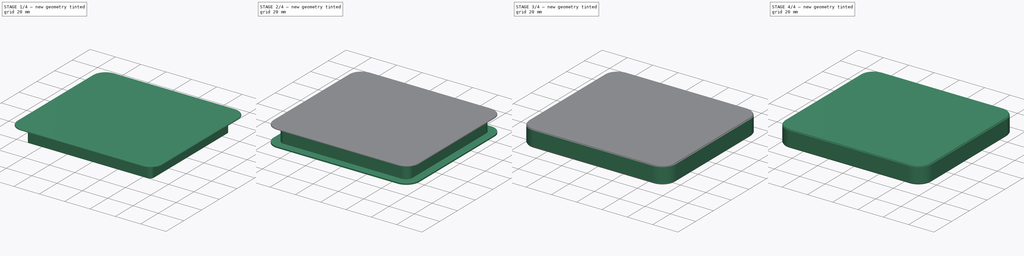
[diagram: build sequence overview — one tinted view per stage of 4, left to right]
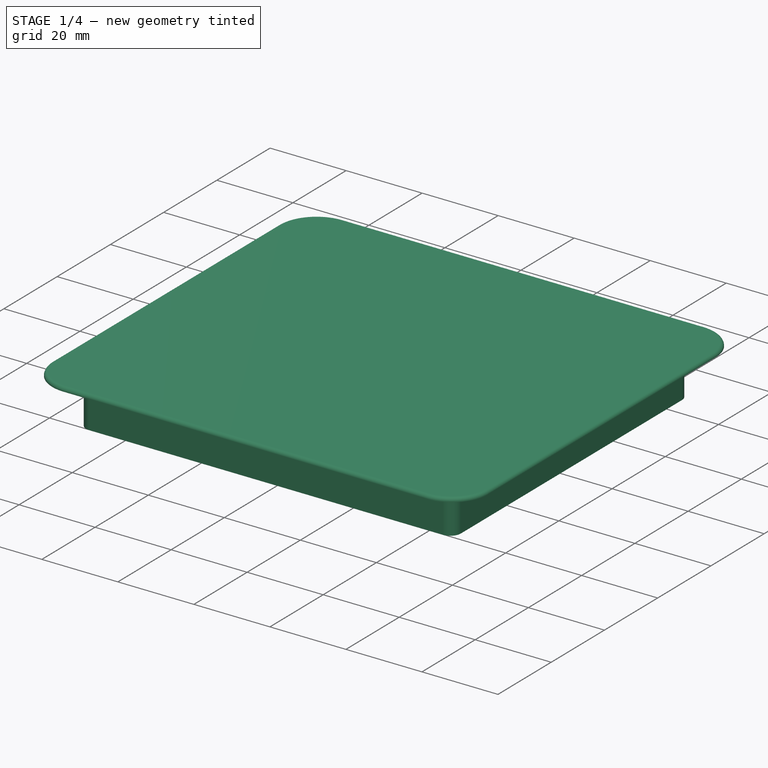
[diagram: stage 1 of 4 — iso view after this stage's code; geometry added in this stage tinted green]
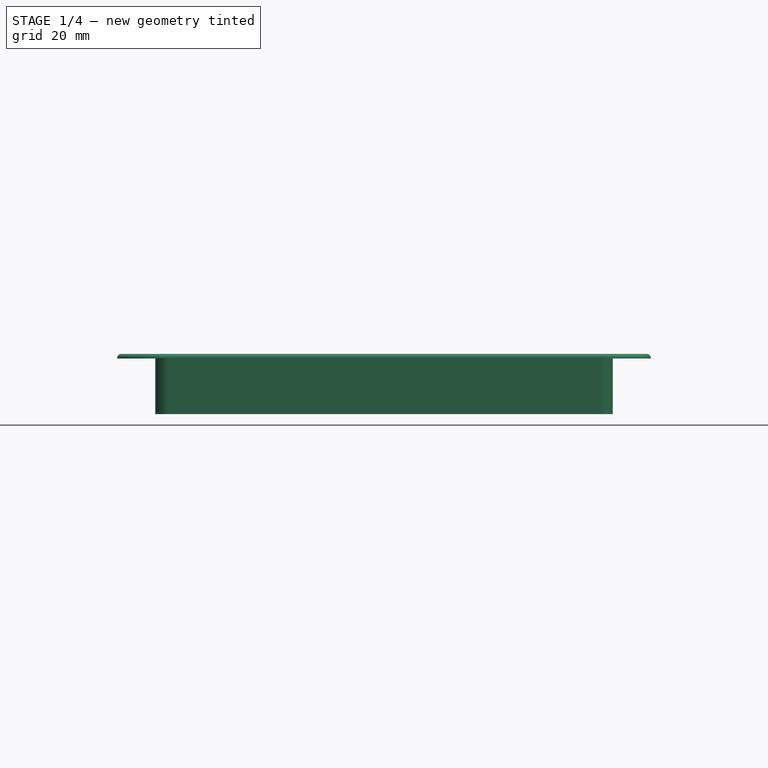
[diagram: stage 1 of 4 — front view after this stage's code; geometry added in this stage tinted green]
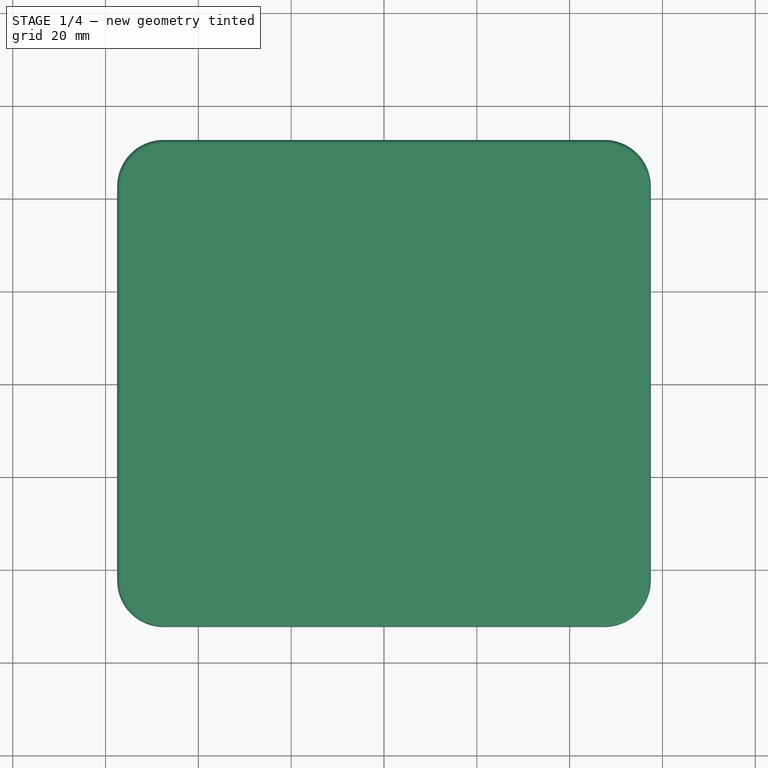
[diagram: stage 1 of 4 — top view after this stage's code; geometry added in this stage tinted green]
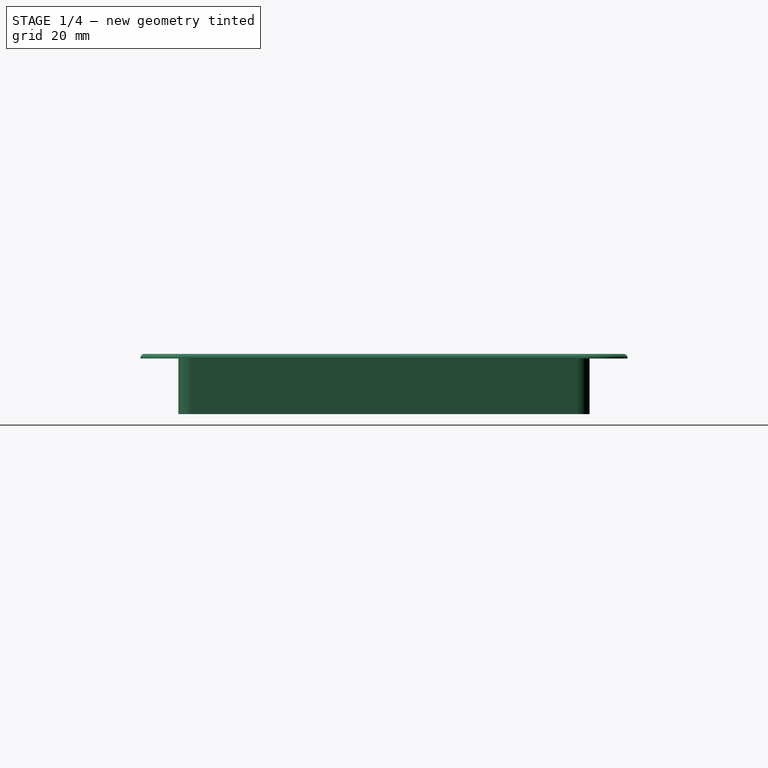
[diagram: stage 1 of 4 — right view after this stage's code; geometry added in this stage tinted green]
FCSTD DOCUMENT  (FreeCAD 1.0R39319 (Git))
Label: shower cover
License: All rights reserved
objects: Sketcher::SketchObject×10, PartDesign::Pad×8, PartDesign::Body×4, PartDesign::Fillet×3, PartDesign::SubtractivePipe×1, PartDesign::AdditivePipe×1
note: 63 computed .brp shape members not serialized (recipe doc carries the construction recipe); baked Part::Feature solids carry a one-line shape summary decoded from their .brp

FEATURE [PartDesign::Body] Body002  label="Half shell, outer"
  AllowCompound = false
  Group = -> [Sketch004,Pad004,Sketch005,Pad005,Fillet001,Sketch006,SubtractivePipe]
  Origin = -> Origin002
  Tip = -> SubtractivePipe
FEATURE [Sketcher::SketchObject] Sketch007
  ArcFitTolerance = 1e-06
  AttachmentSupport = -> [XY_Plane003]
  FullyConstrained = true
  MakeInternals = false
  MapMode = 5
  sketch-geometry (18):
    g0: LineSegment StartX=-46.5 StartY=-44.3 StartZ=0 EndX=46.5 EndY=-44.3 EndZ=0
    g1: LineSegment StartX=49.3 StartY=-41.5 StartZ=0 EndX=49.3 EndY=41.5 EndZ=0
    g2: LineSegment StartX=46.5 StartY=44.3 StartZ=0 EndX=-46.5 EndY=44.3 EndZ=0
    g3: LineSegment StartX=-49.3 StartY=41.5 StartZ=0 EndX=-49.3 EndY=-41.5 EndZ=0
    g4: ArcOfCircle CenterX=-46.5 CenterY=-41.5 CenterZ=0 NormalX=0 NormalY=0 NormalZ=1 AngleXU=0 Radius=2.8 StartAngle=3.14159 EndAngle=4.71239
    g5: ArcOfCircle CenterX=46.5 CenterY=-41.5 CenterZ=0 NormalX=0 NormalY=0 NormalZ=1 AngleXU=0 Radius=2.8 StartAngle=4.71239 EndAngle=6.28319
    g6: ArcOfCircle CenterX=46.5 CenterY=41.5 CenterZ=0 NormalX=0 NormalY=0 NormalZ=1 AngleXU=0 Radius=2.8 StartAngle=0 EndAngle=1.5708
    g7: ArcOfCircle CenterX=-46.5 CenterY=41.5 CenterZ=0 NormalX=0 NormalY=0 NormalZ=1 AngleXU=0 Radius=2.8 StartAngle=1.5708 EndAngle=3.14159
    g8: LineSegment StartX=-46.5 StartY=-42.3 StartZ=0 EndX=46.5 EndY=-42.3 EndZ=0
    g9: LineSegment StartX=47.3 StartY=-41.5 StartZ=0 EndX=47.3 EndY=41.5 EndZ=0
    g10: LineSegment StartX=46.5 StartY=42.3 StartZ=0 EndX=-46.5 EndY=42.3 EndZ=0
    g11: LineSegment StartX=-47.3 StartY=41.5 StartZ=0 EndX=-47.3 EndY=-41.5 EndZ=0
    g12: ArcOfCircle CenterX=-46.5 CenterY=-41.5 CenterZ=0 NormalX=0 NormalY=0 NormalZ=1 AngleXU=0 Radius=0.8 StartAngle=3.14159 EndAngle=4.71239
    g13: ArcOfCircle CenterX=46.5 CenterY=-41.5 CenterZ=0 NormalX=0 NormalY=0 NormalZ=1 AngleXU=0 Radius=0.8 StartAngle=4.71239 EndAngle=6.28319
    g14: ArcOfCircle CenterX=46.5 CenterY=41.5 CenterZ=0 NormalX=0 NormalY=0 NormalZ=1 AngleXU=0 Radius=0.8 StartAngle=0 EndAngle=1.5708
    g15: ArcOfCircle CenterX=-46.5 CenterY=41.5 CenterZ=0 NormalX=0 NormalY=0 NormalZ=1 AngleXU=0 Radius=0.8 StartAngle=1.5708 EndAngle=3.14159
    g16: GeomPoint [constr] X=49.3 Y=44.3 Z=0
    g17: GeomPoint [constr] X=0 Y=0 Z=0
  constraints (38):
    c: Tangent(g0,g4) = -1.5708
    c: Tangent(g0,g5) = -1.5708
    c: Tangent(g1,g5) = -1.5708
    c: Tangent(g1,g6) = -1.5708
    c: Tangent(g2,g6) = -1.5708
    c: Tangent(g2,g7) = -1.5708
    c: Tangent(g3,g7) = -1.5708
    c: Tangent(g3,g4) = -1.5708
    c: Horizontal(g0)
    c: Horizontal(g2)
    c: Vertical(g1)
    c: Vertical(g3)
    c: Equal(g4,g5)
    c: Equal(g5,g6)
    c: Equal(g6,g7)
    c: Tangent(g8,g12) = -1.5708
    c: Tangent(g8,g13) = -1.5708
    c: Tangent(g9,g13) = -1.5708
    c: Tangent(g9,g14) = -1.5708
    c: Tangent(g10,g14) = -1.5708
    c: Tangent(g10,g15) = -1.5708
    c: Tangent(g11,g15) = -1.5708
    c: Tangent(g11,g12) = -1.5708
    c: Coincident(g4,g12)
    c: Coincident(g5,g13)
    c: Coincident(g6,g14)
    c: Coincident(g7,g15)
    c: Horizontal(g8)
    c: Horizontal(g10)
    c: Vertical(g9)
    c: Symmetric(g2,g0,g17)
    c: PointOnObject(g16,g1)
    c: PointOnObject(g16,g2)
    c: Distance(g1,g3) = 98.6
    c: Distance(g0,g2) = 88.6
    c: Radius(g5) = 2.8
    c: Distance(g8,g0) = 2
    c: Coincident(g17,g-1)
FEATURE [PartDesign::Pad] Pad006
  Direction = (0,0,1)
  Length = 12
  Length2 = 10
  Midplane = true
  Profile = -> Sketch007
  ReferenceAxis = -> Sketch007 [N_Axis]
  Refine = true
  Suppressed = false
  Type = 0
FEATURE [Sketcher::SketchObject] Sketch008
  ArcFitTolerance = 1e-06
  AttachmentSupport = -> [Pad006]
  FullyConstrained = true
  MakeInternals = false
  MapMode = 5
  Placement = pos=(0,0,6) rot=(0,0,1;0rad)
  sketch-geometry (10):
    g0: LineSegment StartX=-47.5 StartY=-52.5 StartZ=0 EndX=47.5 EndY=-52.5 EndZ=0
    g1: LineSegment StartX=57.5 StartY=-42.5 StartZ=0 EndX=57.5 EndY=42.5 EndZ=0
    g2: LineSegment StartX=47.5 StartY=52.5 StartZ=0 EndX=-47.5 EndY=52.5 EndZ=0
    g3: LineSegment StartX=-57.5 StartY=42.5 StartZ=0 EndX=-57.5 EndY=-42.5 EndZ=0
    g4: ArcOfCircle CenterX=-47.5 CenterY=-42.5 CenterZ=0 NormalX=0 NormalY=0 NormalZ=1 AngleXU=0 Radius=10 StartAngle=3.14159 EndAngle=4.71239
    g5: ArcOfCircle CenterX=47.5 CenterY=-42.5 CenterZ=0 NormalX=0 NormalY=0 NormalZ=1 AngleXU=0 Radius=10 StartAngle=4.71239 EndAngle=6.28319
    g6: ArcOfCircle CenterX=47.5 CenterY=42.5 CenterZ=0 NormalX=0 NormalY=0 NormalZ=1 AngleXU=0 Radius=10 StartAngle=0 EndAngle=1.5708
    g7: ArcOfCircle CenterX=-47.5 CenterY=42.5 CenterZ=0 NormalX=0 NormalY=0 NormalZ=1 AngleXU=0 Radius=10 StartAngle=1.5708 EndAngle=3.14159
    g8: GeomPoint [constr] X=57.5 Y=52.5 Z=0
    g9: GeomPoint [constr] X=0 Y=0 Z=0
  constraints (22):
    c: Tangent(g0,g4) = -1.5708
    c: Tangent(g0,g5) = -1.5708
    c: Tangent(g1,g5) = -1.5708
    c: Tangent(g1,g6) = -1.5708
    c: Tangent(g2,g6) = -1.5708
    c: Tangent(g2,g7) = -1.5708
    c: Tangent(g3,g7) = -1.5708
    c: Tangent(g3,g4) = -1.5708
    c: Horizontal(g0)
    c: Horizontal(g2)
    c: Vertical(g1)
    c: Vertical(g3)
    c: Equal(g4,g5)
    c: Equal(g5,g6)
    c: Equal(g6,g7)
    c: Symmetric(g2,g0,g9)
    c: PointOnObject(g8,g1)
    c: PointOnObject(g8,g2)
    c: Distance(g1,g3) = 115
    c: Distance(g0,g2) = 105
    c: Radius(g5) = 10
    c: Coincident(g9,g-1)
FEATURE [PartDesign::Pad] Pad007
  BaseFeature = -> Pad006
  Direction = (0,0,1)
  Length = 1
  Length2 = 10
  Profile = -> Sketch008
  ReferenceAxis = -> Sketch008 [N_Axis]
  Refine = true
  Suppressed = false
  Type = 0
FEATURE [PartDesign::Fillet] Fillet002
  Base = -> Pad007 [Edge65]
  BaseFeature = -> Pad007
  Radius = 0.9
  Refine = true
  SupportTransform = false
  Suppressed = false
  UseAllEdges = false
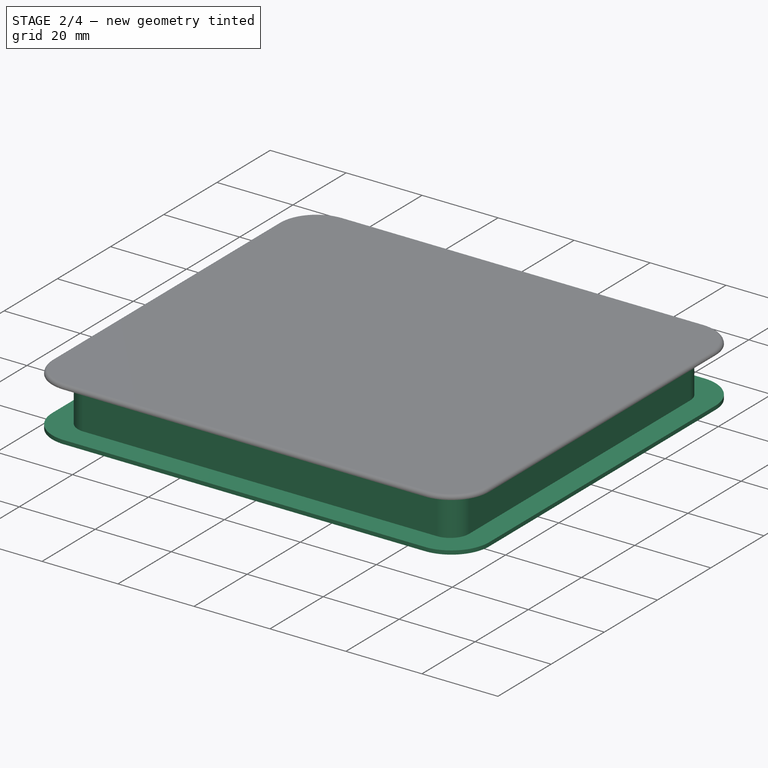
[diagram: stage 2 of 4 — iso view after this stage's code; geometry added in this stage tinted green]
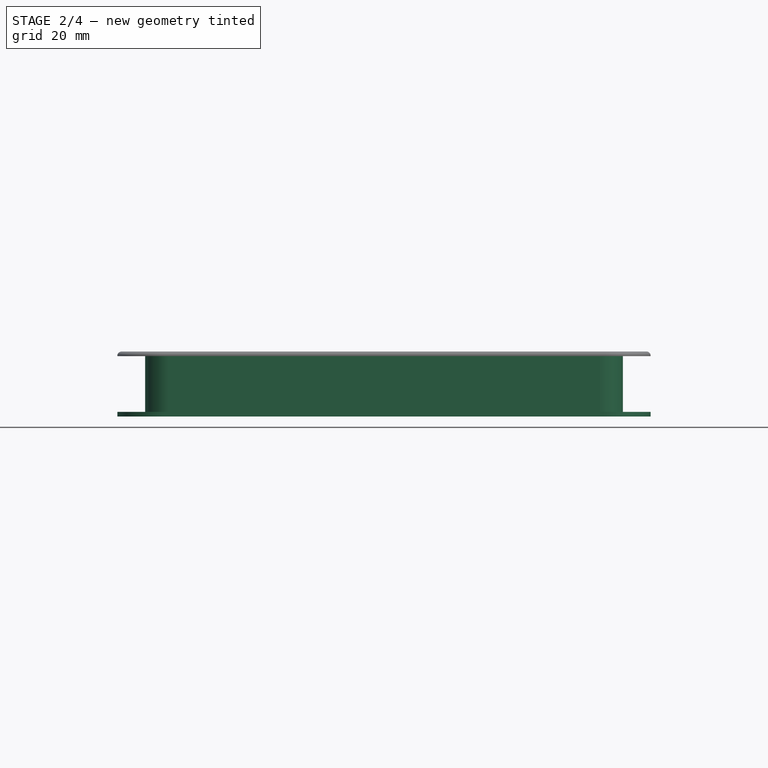
[diagram: stage 2 of 4 — front view after this stage's code; geometry added in this stage tinted green]
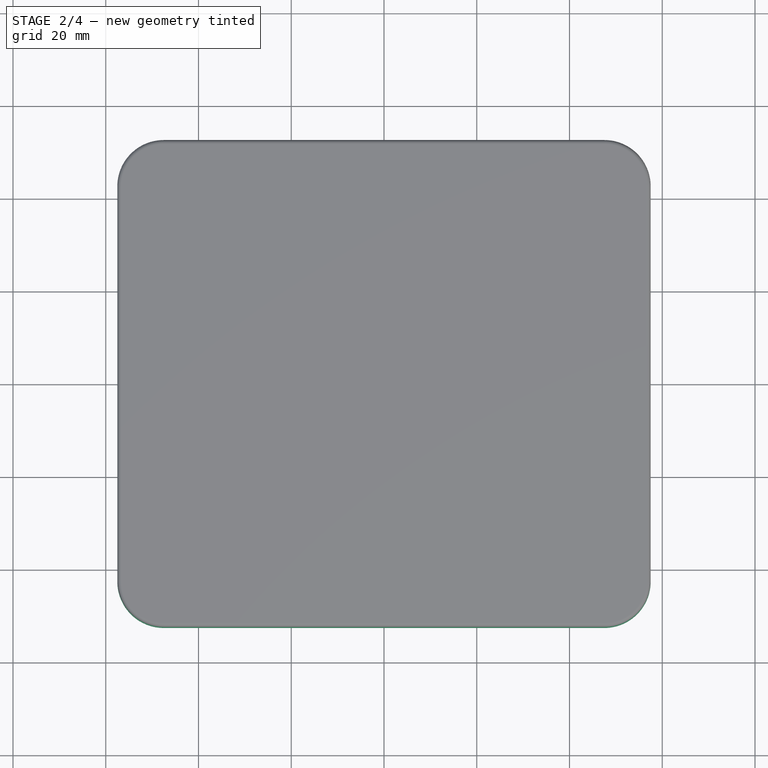
[diagram: stage 2 of 4 — top view after this stage's code; geometry added in this stage tinted green]
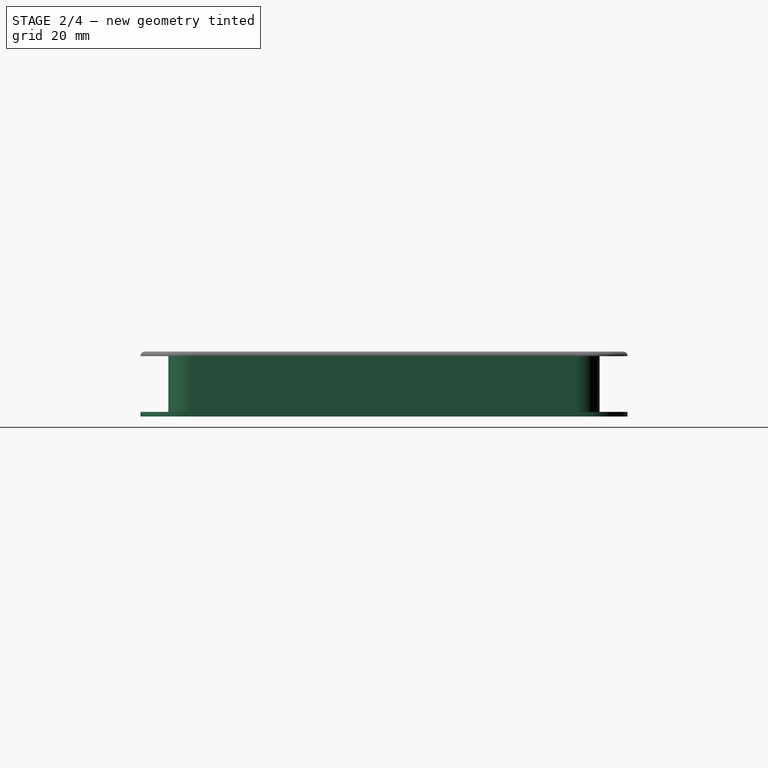
[diagram: stage 2 of 4 — right view after this stage's code; geometry added in this stage tinted green]
FEATURE [PartDesign::Body] Body001  label="support"
  AllowCompound = false
  Group = -> [Sketch003,Pad003]
  Origin = -> Origin001
  Tip = -> Pad003
FEATURE [Sketcher::SketchObject] Sketch004
  ArcFitTolerance = 1e-06
  AttachmentSupport = -> [XY_Plane002]
  FullyConstrained = true
  MakeInternals = false
  MapMode = 5
  sketch-geometry (18):
    g0: LineSegment StartX=-46.5 StartY=-46.5 StartZ=0 EndX=46.5 EndY=-46.5 EndZ=0
    g1: LineSegment StartX=51.5 StartY=-41.5 StartZ=0 EndX=51.5 EndY=41.5 EndZ=0
    g2: LineSegment StartX=46.5 StartY=46.5 StartZ=0 EndX=-46.5 EndY=46.5 EndZ=0
    g3: LineSegment StartX=-51.5 StartY=41.5 StartZ=0 EndX=-51.5 EndY=-41.5 EndZ=0
    g4: ArcOfCircle CenterX=-46.5 CenterY=-41.5 CenterZ=0 NormalX=0 NormalY=0 NormalZ=1 AngleXU=0 Radius=5 StartAngle=3.14159 EndAngle=4.71239
    g5: ArcOfCircle CenterX=46.5 CenterY=-41.5 CenterZ=0 NormalX=0 NormalY=0 NormalZ=1 AngleXU=0 Radius=5 StartAngle=4.71239 EndAngle=6.28319
    g6: ArcOfCircle CenterX=46.5 CenterY=41.5 CenterZ=0 NormalX=0 NormalY=0 NormalZ=1 AngleXU=0 Radius=5 StartAngle=0 EndAngle=1.5708
    g7: ArcOfCircle CenterX=-46.5 CenterY=41.5 CenterZ=0 NormalX=0 NormalY=0 NormalZ=1 AngleXU=0 Radius=5 StartAngle=1.5708 EndAngle=3.14159
    g8: LineSegment StartX=-46.5 StartY=-44.5 StartZ=0 EndX=46.5 EndY=-44.5 EndZ=0
    g9: LineSegment StartX=49.5 StartY=-41.5 StartZ=0 EndX=49.5 EndY=41.5 EndZ=0
    g10: LineSegment StartX=46.5 StartY=44.5 StartZ=0 EndX=-46.5 EndY=44.5 EndZ=0
    g11: LineSegment StartX=-49.5 StartY=41.5 StartZ=0 EndX=-49.5 EndY=-41.5 EndZ=0
    g12: ArcOfCircle CenterX=-46.5 CenterY=-41.5 CenterZ=0 NormalX=0 NormalY=0 NormalZ=1 AngleXU=0 Radius=3 StartAngle=3.14159 EndAngle=4.71239
    g13: ArcOfCircle CenterX=46.5 CenterY=-41.5 CenterZ=0 NormalX=0 NormalY=0 NormalZ=1 AngleXU=0 Radius=3 StartAngle=4.71239 EndAngle=6.28319
    g14: ArcOfCircle CenterX=46.5 CenterY=41.5 CenterZ=0 NormalX=0 NormalY=0 NormalZ=1 AngleXU=0 Radius=3 StartAngle=0 EndAngle=1.5708
    g15: ArcOfCircle CenterX=-46.5 CenterY=41.5 CenterZ=0 NormalX=0 NormalY=0 NormalZ=1 AngleXU=0 Radius=3 StartAngle=1.5708 EndAngle=3.14159
    g16: GeomPoint [constr] X=51.5 Y=46.5 Z=0
    g17: GeomPoint [constr] X=0 Y=0 Z=0
  constraints (38):
    c: Tangent(g0,g4) = -1.5708
    c: Tangent(g0,g5) = -1.5708
    c: Tangent(g1,g5) = -1.5708
    c: Tangent(g1,g6) = -1.5708
    c: Tangent(g2,g6) = -1.5708
    c: Tangent(g2,g7) = -1.5708
    c: Tangent(g3,g7) = -1.5708
    c: Tangent(g3,g4) = -1.5708
    c: Horizontal(g0)
    c: Horizontal(g2)
    c: Vertical(g1)
    c: Vertical(g3)
    c: Equal(g4,g5)
    c: Equal(g5,g6)
    c: Equal(g6,g7)
    c: Tangent(g8,g12) = -1.5708
    c: Tangent(g8,g13) = -1.5708
    c: Tangent(g9,g13) = -1.5708
    c: Tangent(g9,g14) = -1.5708
    c: Tangent(g10,g14) = -1.5708
    c: Tangent(g10,g15) = -1.5708
    c: Tangent(g11,g15) = -1.5708
    c: Tangent(g11,g12) = -1.5708
    c: Coincident(g4,g12)
    c: Coincident(g5,g13)
    c: Coincident(g6,g14)
    c: Coincident(g7,g15)
    c: Horizontal(g8)
    c: Horizontal(g10)
    c: Vertical(g9)
    c: Symmetric(g2,g0,g17)
    c: PointOnObject(g16,g1)
    c: PointOnObject(g16,g2)
    c: Distance(g1,g3) = 103
    c: Distance(g0,g2) = 93
    c: Radius(g5) = 5
    c: Distance(g8,g0) = 2
    c: Coincident(g17,g-1)
FEATURE [PartDesign::Pad] Pad004
  Direction = (0,0,1)
  Length = 12
  Length2 = 10
  Midplane = true
  Profile = -> Sketch004
  ReferenceAxis = -> Sketch004 [N_Axis]
  Refine = true
  Suppressed = false
  Type = 0
FEATURE [Sketcher::SketchObject] Sketch005
  ArcFitTolerance = 1e-06
  AttachmentSupport = -> [Pad004]
  FullyConstrained = true
  MakeInternals = false
  MapMode = 5
  Placement = pos=(0,0,-6) rot=(1,0,0;3.14159rad)
  sketch-geometry (10):
    g0: LineSegment StartX=-47.5 StartY=-52.5 StartZ=0 EndX=47.5 EndY=-52.5 EndZ=0
    g1: LineSegment StartX=57.5 StartY=-42.5 StartZ=0 EndX=57.5 EndY=42.5 EndZ=0
    g2: LineSegment StartX=47.5 StartY=52.5 StartZ=0 EndX=-47.5 EndY=52.5 EndZ=0
    g3: LineSegment StartX=-57.5 StartY=42.5 StartZ=0 EndX=-57.5 EndY=-42.5 EndZ=0
    g4: ArcOfCircle CenterX=-47.5 CenterY=-42.5 CenterZ=0 NormalX=0 NormalY=0 NormalZ=1 AngleXU=0 Radius=10 StartAngle=3.14159 EndAngle=4.71239
    g5: ArcOfCircle CenterX=47.5 CenterY=-42.5 CenterZ=0 NormalX=0 NormalY=0 NormalZ=1 AngleXU=0 Radius=10 StartAngle=4.71239 EndAngle=6.28319
    g6: ArcOfCircle CenterX=47.5 CenterY=42.5 CenterZ=0 NormalX=0 NormalY=0 NormalZ=1 AngleXU=0 Radius=10 StartAngle=3.4e-15 EndAngle=1.5708
    g7: ArcOfCircle CenterX=-47.5 CenterY=42.5 CenterZ=0 NormalX=0 NormalY=0 NormalZ=1 AngleXU=0 Radius=10 StartAngle=1.5708 EndAngle=3.14159
    g8: GeomPoint [constr] X=57.5 Y=52.5 Z=0
    g9: GeomPoint [constr] X=0 Y=0 Z=0
  constraints (22):
    c: Tangent(g0,g4) = -1.5708
    c: Tangent(g0,g5) = -1.5708
    c: Tangent(g1,g5) = -1.5708
    c: Tangent(g1,g6) = -1.5708
    c: Tangent(g2,g6) = -1.5708
    c: Tangent(g2,g7) = -1.5708
    c: Tangent(g3,g7) = -1.5708
    c: Tangent(g3,g4) = -1.5708
    c: Horizontal(g0)
    c: Horizontal(g2)
    c: Vertical(g1)
    c: Vertical(g3)
    c: Equal(g4,g5)
    c: Equal(g5,g6)
    c: Equal(g6,g7)
    c: Symmetric(g2,g0,g9)
    c: PointOnObject(g8,g1)
    c: PointOnObject(g8,g2)
    c: Distance(g1,g3) = 115
    c: Distance(g0,g2) = 105
    c: Radius(g5) = 10
    c: Coincident(g9,g-1)
FEATURE [PartDesign::Pad] Pad005
  BaseFeature = -> Pad004
  Direction = (0,0,-1)
  Length = 1
  Length2 = 10
  Profile = -> Sketch005
  ReferenceAxis = -> Sketch005 [N_Axis]
  Refine = true
  Suppressed = false
  Type = 0
FEATURE [Sketcher::SketchObject] Sketch009
  ArcFitTolerance = 1e-06
  AttachmentSupport = -> [XZ_Plane003]
  ExternalGeometry = -> [Fillet002]
  FullyConstrained = true
  MakeInternals = false
  MapMode = 5
  Placement = pos=(0,0,0) rot=(1,0,0;1.5708rad)
  sketch-geometry (1):
    g0: Circle CenterX=-49.3 CenterY=0 CenterZ=0 NormalX=0 NormalY=0 NormalZ=1 AngleXU=0 Radius=0.2
  constraints (3):
    c: Diameter(g0) = 0.4
    c: PointOnObject(g0,g-1)
    c: Vertical(g0,g-3)
FEATURE [PartDesign::AdditivePipe] AdditivePipe
  AuxilleryCurvelinear = true
  AuxillerySpineTangent = false
  BaseFeature = -> Fillet002
  Binormal = (0,0,0)
  Mode = 0
  Profile = -> Sketch009
  Refine = true
  Spine = -> Fillet002 [Edge59,Edge60,Edge47,Edge49,Edge51,Edge53,Edge55,Edge57]
  SpineTangent = false
  Suppressed = false
  Transformation = 0
  Transition = 0
FEATURE [PartDesign::Body] Body003  label="half shell, inner"
  AllowCompound = false
  Group = -> [Sketch007,Pad006,Sketch008,Pad007,Fillet002,Sketch009,AdditivePipe]
  Origin = -> Origin003
  Tip = -> AdditivePipe
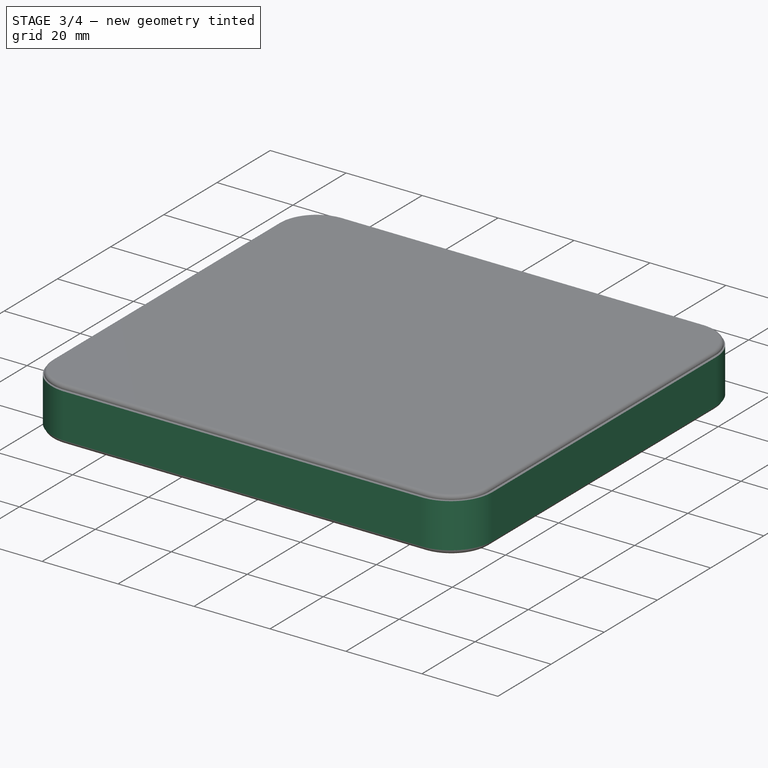
[diagram: stage 3 of 4 — iso view after this stage's code; geometry added in this stage tinted green]
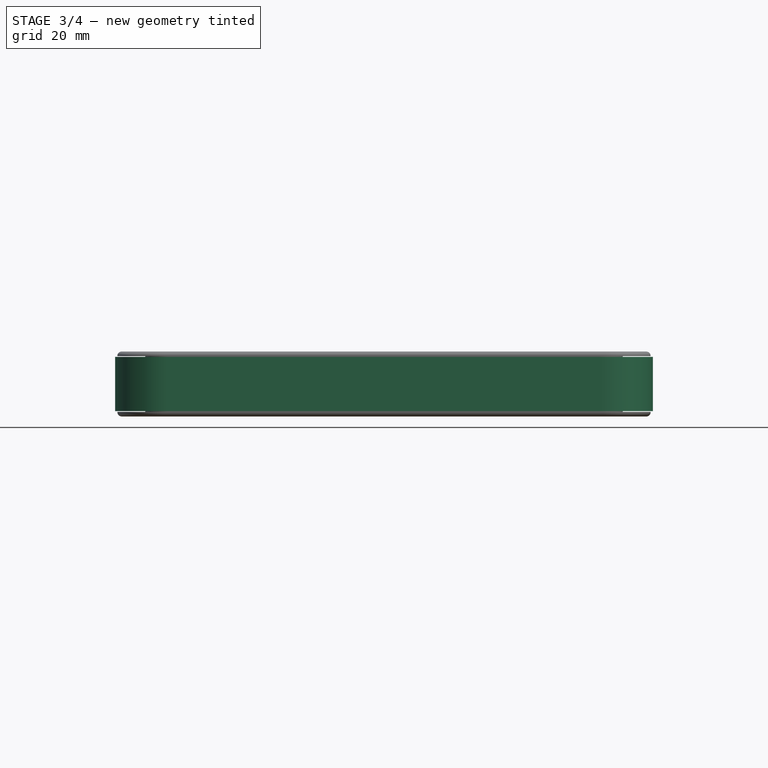
[diagram: stage 3 of 4 — front view after this stage's code; geometry added in this stage tinted green]
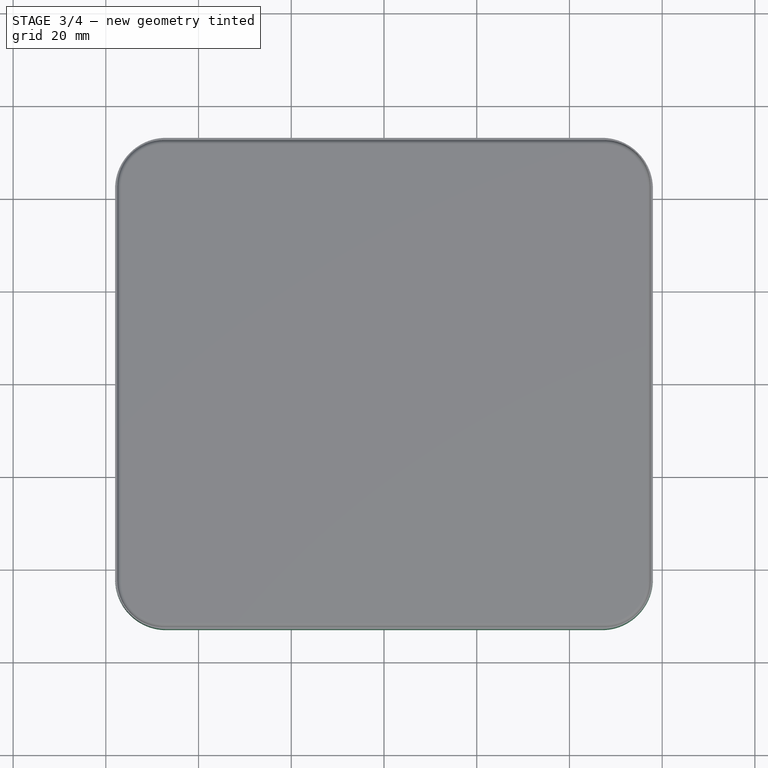
[diagram: stage 3 of 4 — top view after this stage's code; geometry added in this stage tinted green]
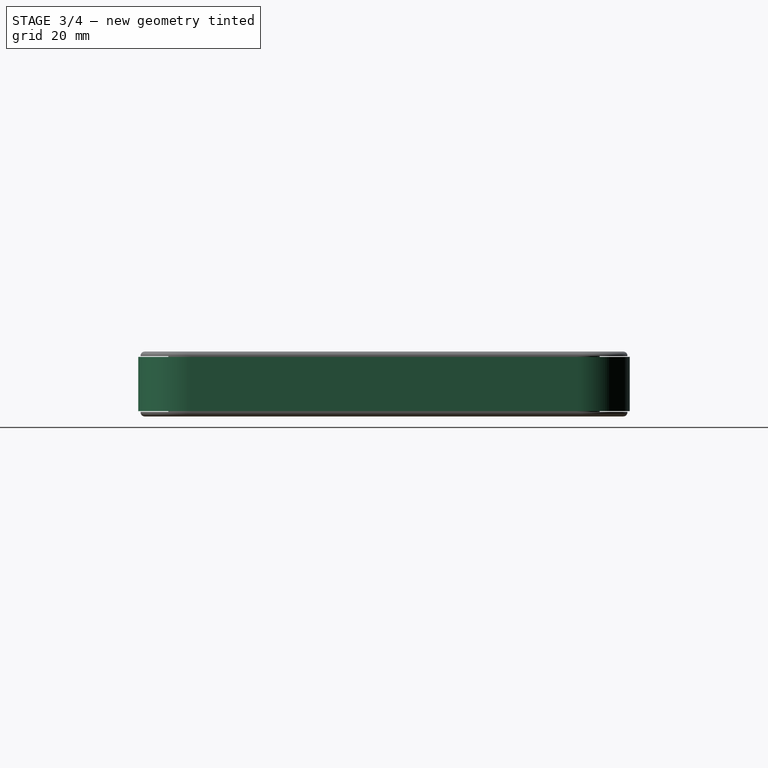
[diagram: stage 3 of 4 — right view after this stage's code; geometry added in this stage tinted green]
FEATURE [Sketcher::SketchObject] Sketch
  ArcFitTolerance = 1e-06
  AttachmentSupport = -> [XY_Plane]
  FullyConstrained = true
  MakeInternals = false
  MapMode = 5
  sketch-geometry (10):
    g0: LineSegment StartX=-46.5 StartY=-46.5 StartZ=0 EndX=46.5 EndY=-46.5 EndZ=0
    g1: LineSegment StartX=51.5 StartY=-41.5 StartZ=0 EndX=51.5 EndY=41.5 EndZ=0
    g2: LineSegment StartX=46.5 StartY=46.5 StartZ=0 EndX=-46.5 EndY=46.5 EndZ=0
    g3: LineSegment StartX=-51.5 StartY=41.5 StartZ=0 EndX=-51.5 EndY=-41.5 EndZ=0
    g4: ArcOfCircle CenterX=-46.5 CenterY=-41.5 CenterZ=0 NormalX=0 NormalY=0 NormalZ=1 AngleXU=0 Radius=5 StartAngle=3.14159 EndAngle=4.71239
    g5: ArcOfCircle CenterX=46.5 CenterY=-41.5 CenterZ=0 NormalX=0 NormalY=0 NormalZ=1 AngleXU=0 Radius=5 StartAngle=4.71239 EndAngle=6.28319
    g6: ArcOfCircle CenterX=46.5 CenterY=41.5 CenterZ=0 NormalX=0 NormalY=0 NormalZ=1 AngleXU=0 Radius=5 StartAngle=0 EndAngle=1.5708
    g7: ArcOfCircle CenterX=-46.5 CenterY=41.5 CenterZ=0 NormalX=0 NormalY=0 NormalZ=1 AngleXU=0 Radius=5 StartAngle=1.5708 EndAngle=3.14159
    g8: GeomPoint [constr] X=51.5 Y=46.5 Z=0
    g9: GeomPoint [constr] X=0 Y=0 Z=0
  constraints (22):
    c: Tangent(g0,g4) = -1.5708
    c: Tangent(g0,g5) = -1.5708
    c: Tangent(g1,g5) = -1.5708
    c: Tangent(g1,g6) = -1.5708
    c: Tangent(g2,g6) = -1.5708
    c: Tangent(g2,g7) = -1.5708
    c: Tangent(g3,g7) = -1.5708
    c: Tangent(g3,g4) = -1.5708
    c: Horizontal(g0)
    c: Horizontal(g2)
    c: Vertical(g1)
    c: Vertical(g3)
    c: Equal(g4,g5)
    c: Equal(g5,g6)
    c: Equal(g6,g7)
    c: Symmetric(g2,g0,g9)
    c: PointOnObject(g8,g1)
    c: PointOnObject(g8,g2)
    c: Distance(g1,g3) = 103
    c: Distance(g0,g2) = 93
    c: Radius(g5) = 5
    c: Coincident(g9,g-1)
FEATURE [PartDesign::Pad] Pad
  Direction = (0,0,1)
  Length = 12
  Length2 = 10
  Midplane = true
  Profile = -> Sketch
  ReferenceAxis = -> Sketch [N_Axis]
  Refine = true
  Suppressed = false
  Type = 0
FEATURE [PartDesign::Body] Body  label="Cover"
  AllowCompound = false
  Group = -> [Sketch,Pad,Sketch001,Pad001,Sketch002,Pad002,Fillet]
  Origin = -> Origin
  Tip = -> Fillet
FEATURE [Sketcher::SketchObject] Sketch003
  ArcFitTolerance = 1e-06
  AttachmentSupport = -> [XY_Plane001]
  FullyConstrained = true
  MakeInternals = false
  MapMode = 5
  sketch-geometry (18):
    g0: LineSegment StartX=-47 StartY=-47 StartZ=0 EndX=47 EndY=-47 EndZ=0
    g1: LineSegment StartX=52 StartY=-42 StartZ=0 EndX=52 EndY=42 EndZ=0
    g2: LineSegment StartX=47 StartY=47 StartZ=0 EndX=-47 EndY=47 EndZ=0
    g3: LineSegment StartX=-52 StartY=42 StartZ=0 EndX=-52 EndY=-42 EndZ=0
    g4: ArcOfCircle CenterX=-47 CenterY=-42 CenterZ=0 NormalX=0 NormalY=0 NormalZ=1 AngleXU=0 Radius=5 StartAngle=3.14159 EndAngle=4.71239
    g5: ArcOfCircle CenterX=47 CenterY=-42 CenterZ=0 NormalX=0 NormalY=0 NormalZ=1 AngleXU=0 Radius=5 StartAngle=4.71239 EndAngle=6.28319
    g6: ArcOfCircle CenterX=47 CenterY=42 CenterZ=0 NormalX=0 NormalY=0 NormalZ=1 AngleXU=0 Radius=5 StartAngle=3e-16 EndAngle=1.5708
    g7: ArcOfCircle CenterX=-47 CenterY=42 CenterZ=0 NormalX=0 NormalY=0 NormalZ=1 AngleXU=0 Radius=5 StartAngle=1.5708 EndAngle=3.14159
    g8: LineSegment StartX=-47 StartY=-53 StartZ=0 EndX=47 EndY=-53 EndZ=0
    g9: LineSegment StartX=58 StartY=-42 StartZ=0 EndX=58 EndY=42 EndZ=0
    g10: LineSegment StartX=47 StartY=53 StartZ=0 EndX=-47 EndY=53 EndZ=0
    g11: LineSegment StartX=-58 StartY=42 StartZ=0 EndX=-58 EndY=-42 EndZ=0
    g12: ArcOfCircle CenterX=-47 CenterY=-42 CenterZ=0 NormalX=0 NormalY=0 NormalZ=1 AngleXU=0 Radius=11 StartAngle=3.14159 EndAngle=4.71239
    g13: ArcOfCircle CenterX=47 CenterY=-42 CenterZ=0 NormalX=0 NormalY=0 NormalZ=1 AngleXU=0 Radius=11 StartAngle=4.71239 EndAngle=6.28319
    g14: ArcOfCircle CenterX=47 CenterY=42 CenterZ=0 NormalX=0 NormalY=0 NormalZ=1 AngleXU=0 Radius=11 StartAngle=2e-16 EndAngle=1.5708
    g15: ArcOfCircle CenterX=-47 CenterY=42 CenterZ=0 NormalX=0 NormalY=0 NormalZ=1 AngleXU=0 Radius=11 StartAngle=1.5708 EndAngle=3.14159
    g16: GeomPoint [constr] X=52 Y=47 Z=0
    g17: GeomPoint [constr] X=0 Y=0 Z=0
  constraints (38):
    c: Tangent(g0,g4) = -1.5708
    c: Tangent(g0,g5) = -1.5708
    c: Tangent(g1,g5) = -1.5708
    c: Tangent(g1,g6) = -1.5708
    c: Tangent(g2,g6) = -1.5708
    c: Tangent(g2,g7) = -1.5708
    c: Tangent(g3,g7) = -1.5708
    c: Tangent(g3,g4) = -1.5708
    c: Horizontal(g0)
    c: Horizontal(g2)
    c: Vertical(g1)
    c: Vertical(g3)
    c: Equal(g4,g5)
    c: Equal(g5,g6)
    c: Equal(g6,g7)
    c: Tangent(g8,g12) = -1.5708
    c: Tangent(g8,g13) = -1.5708
    c: Tangent(g9,g13) = -1.5708
    c: Tangent(g9,g14) = -1.5708
    c: Tangent(g10,g14) = -1.5708
    c: Tangent(g10,g15) = -1.5708
    c: Tangent(g11,g15) = -1.5708
    c: Tangent(g11,g12) = -1.5708
    c: Coincident(g4,g12)
    c: Coincident(g5,g13)
    c: Coincident(g6,g14)
    c: Coincident(g7,g15)
    c: Horizontal(g8)
    c: Horizontal(g10)
    c: Vertical(g9)
    c: Symmetric(g2,g0,g17)
    c: PointOnObject(g16,g1)
    c: PointOnObject(g16,g2)
    c: Distance(g1,g3) = 104
    c: Distance(g0,g2) = 94
    c: Radius(g5) = 5
    c: Distance(g8,g0) = 6
    c: Coincident(g17,g-1)
FEATURE [PartDesign::Pad] Pad003
  Direction = (0,0,1)
  Length = 11.7
  Length2 = 10
  Midplane = true
  Profile = -> Sketch003
  ReferenceAxis = -> Sketch003 [N_Axis]
  Refine = true
  Suppressed = false
  Type = 0
FEATURE [PartDesign::Fillet] Fillet001
  Base = -> Pad005 [Edge49]
  BaseFeature = -> Pad005
  Radius = 0.9
  Refine = true
  SupportTransform = false
  Suppressed = false
  UseAllEdges = false
FEATURE [Sketcher::SketchObject] Sketch006
  ArcFitTolerance = 1e-06
  AttachmentSupport = -> [YZ_Plane002]
  ExternalGeometry = -> [Fillet001]
  FullyConstrained = true
  MakeInternals = false
  MapMode = 5
  Placement = pos=(0,0,0) rot=(0.57735,0.57735,0.57735;2.0944rad)
  sketch-geometry (1):
    g0: Circle CenterX=-44.5 CenterY=0 CenterZ=0 NormalX=0 NormalY=0 NormalZ=1 AngleXU=0 Radius=0.3
  constraints (3):
    c: Diameter(g0) = 0.6
    c: PointOnObject(g0,g-1)
    c: Vertical(g-3,g0)
FEATURE [PartDesign::SubtractivePipe] SubtractivePipe
  AuxilleryCurvelinear = true
  AuxillerySpineTangent = false
  BaseFeature = -> Fillet001
  Binormal = (0,0,0)
  Mode = 0
  Profile = -> Sketch006
  Refine = true
  Spine = -> Fillet001 [Edge65,Edge72,Edge71,Edge70,Edge69,Edge68,Edge67]
  SpineTangent = false
  Suppressed = false
  Transformation = 0
  Transition = 0
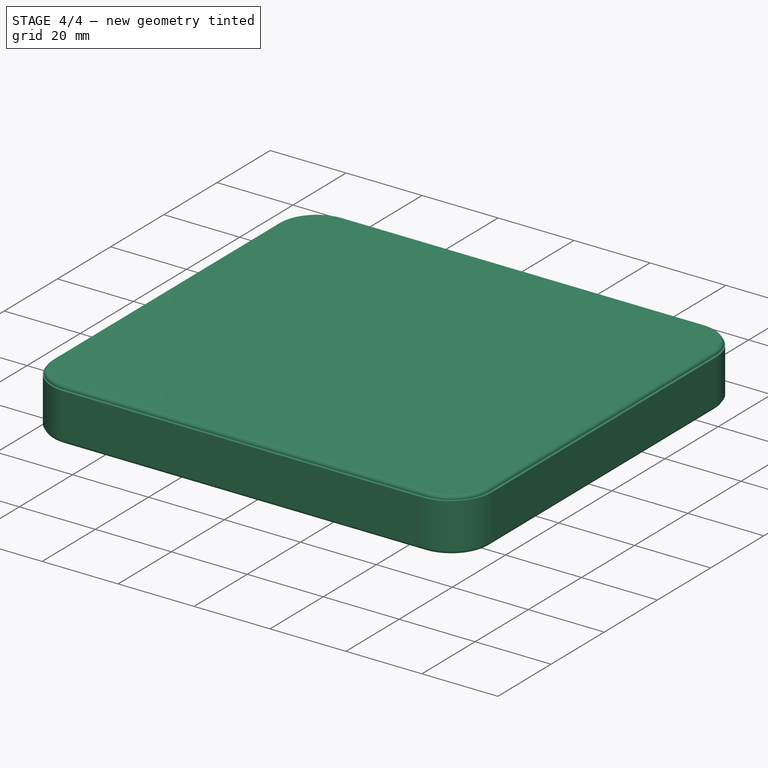
[diagram: stage 4 of 4 — iso view after this stage's code; geometry added in this stage tinted green]
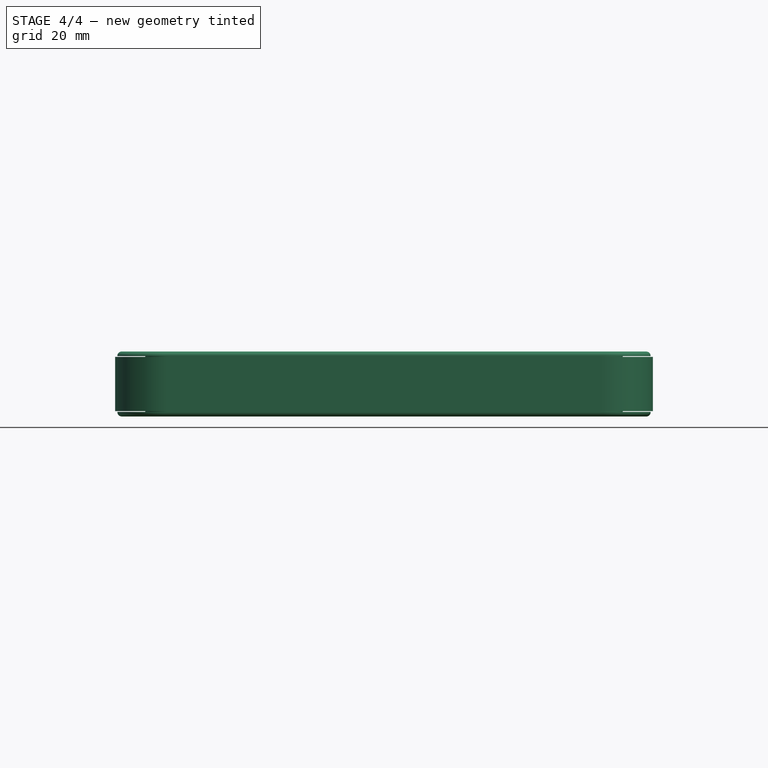
[diagram: stage 4 of 4 — front view after this stage's code; geometry added in this stage tinted green]
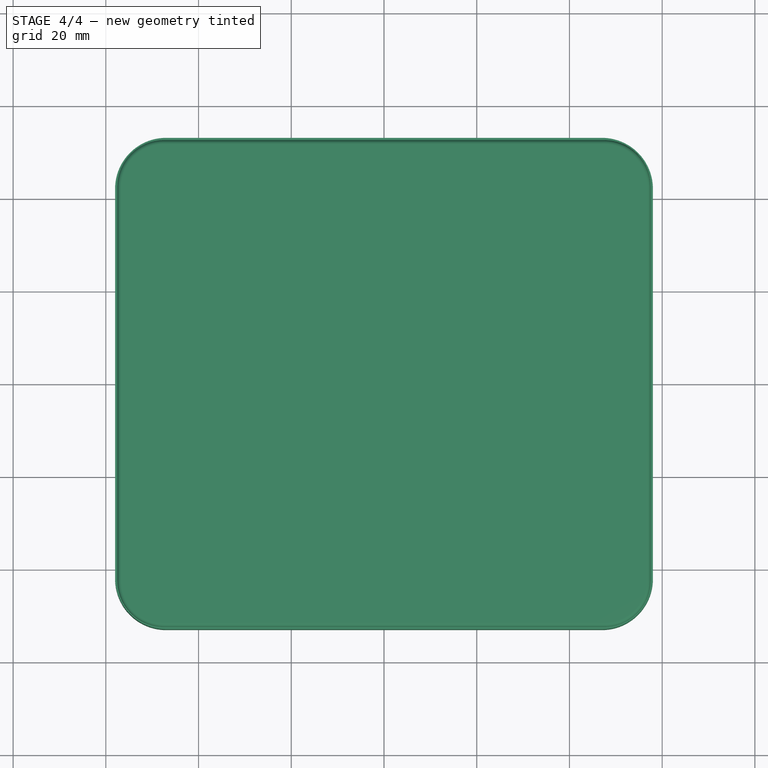
[diagram: stage 4 of 4 — top view after this stage's code; geometry added in this stage tinted green]
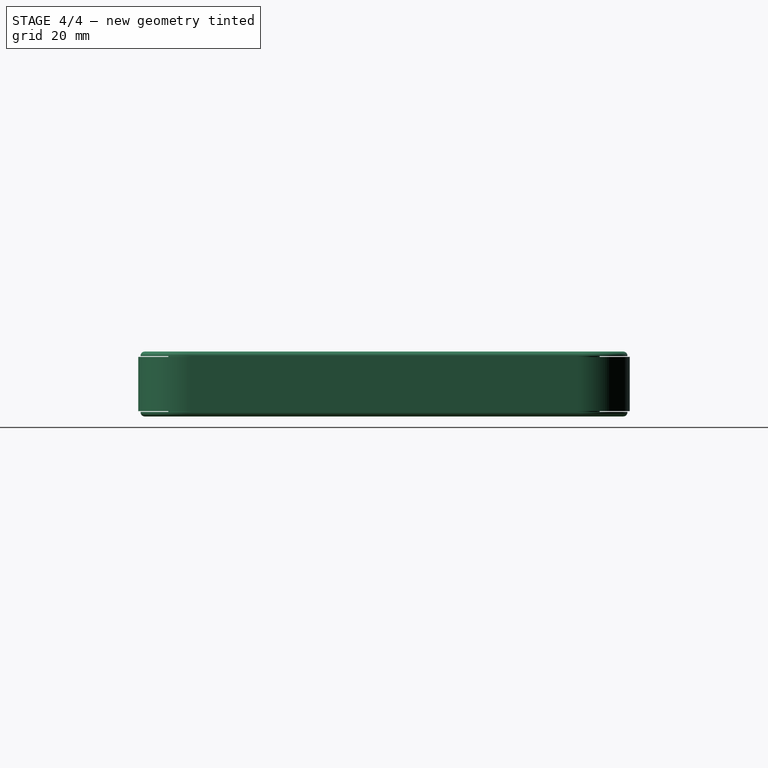
[diagram: stage 4 of 4 — right view after this stage's code; geometry added in this stage tinted green]
FEATURE [Sketcher::SketchObject] Sketch001
  ArcFitTolerance = 1e-06
  AttachmentSupport = -> [Pad]
  FullyConstrained = true
  MakeInternals = false
  MapMode = 5
  Placement = pos=(0,0,6) rot=(0,0,1;0rad)
  sketch-geometry (10):
    g0: LineSegment StartX=-47.5 StartY=-52.5 StartZ=0 EndX=47.5 EndY=-52.5 EndZ=0
    g1: LineSegment StartX=57.5 StartY=-42.5 StartZ=0 EndX=57.5 EndY=42.5 EndZ=0
    g2: LineSegment StartX=47.5 StartY=52.5 StartZ=0 EndX=-47.5 EndY=52.5 EndZ=0
    g3: LineSegment StartX=-57.5 StartY=42.5 StartZ=0 EndX=-57.5 EndY=-42.5 EndZ=0
    g4: ArcOfCircle CenterX=-47.5 CenterY=-42.5 CenterZ=0 NormalX=0 NormalY=0 NormalZ=1 AngleXU=0 Radius=10 StartAngle=3.14159 EndAngle=4.71239
    g5: ArcOfCircle CenterX=47.5 CenterY=-42.5 CenterZ=0 NormalX=0 NormalY=0 NormalZ=1 AngleXU=0 Radius=10 StartAngle=4.71239 EndAngle=6.28319
    g6: ArcOfCircle CenterX=47.5 CenterY=42.5 CenterZ=0 NormalX=0 NormalY=0 NormalZ=1 AngleXU=0 Radius=10 StartAngle=2.548e-13 EndAngle=1.5708
    g7: ArcOfCircle CenterX=-47.5 CenterY=42.5 CenterZ=0 NormalX=0 NormalY=0 NormalZ=1 AngleXU=0 Radius=10 StartAngle=1.5708 EndAngle=3.14159
    g8: GeomPoint [constr] X=57.5 Y=52.5 Z=0
    g9: GeomPoint [constr] X=0 Y=0 Z=0
  constraints (22):
    c: Tangent(g0,g4) = -1.5708
    c: Tangent(g0,g5) = -1.5708
    c: Tangent(g1,g5) = -1.5708
    c: Tangent(g1,g6) = -1.5708
    c: Tangent(g2,g6) = -1.5708
    c: Tangent(g2,g7) = -1.5708
    c: Tangent(g3,g7) = -1.5708
    c: Tangent(g3,g4) = -1.5708
    c: Horizontal(g0)
    c: Horizontal(g2)
    c: Vertical(g1)
    c: Vertical(g3)
    c: Equal(g4,g5)
    c: Equal(g5,g6)
    c: Equal(g6,g7)
    c: Symmetric(g2,g0,g9)
    c: PointOnObject(g8,g1)
    c: PointOnObject(g8,g2)
    c: Distance(g1,g3) = 115
    c: Distance(g0,g2) = 105
    c: Radius(g5) = 10
    c: Coincident(g9,g-1)
FEATURE [PartDesign::Pad] Pad001
  BaseFeature = -> Pad
  Direction = (0,0,1)
  Length = 1
  Length2 = 10
  Profile = -> Sketch001
  ReferenceAxis = -> Sketch001 [N_Axis]
  Refine = true
  Suppressed = false
  Type = 0
FEATURE [Sketcher::SketchObject] Sketch002
  ArcFitTolerance = 1e-06
  AttachmentSupport = -> [Pad001]
  FullyConstrained = true
  MakeInternals = false
  MapMode = 5
  Placement = pos=(0,0,-6) rot=(1,0,0;3.14159rad)
  sketch-geometry (10):
    g0: LineSegment StartX=-47.5 StartY=-52.5 StartZ=0 EndX=47.5 EndY=-52.5 EndZ=0
    g1: LineSegment StartX=57.5 StartY=-42.5 StartZ=0 EndX=57.5 EndY=42.5 EndZ=0
    g2: LineSegment StartX=47.5 StartY=52.5 StartZ=0 EndX=-47.5 EndY=52.5 EndZ=0
    g3: LineSegment StartX=-57.5 StartY=42.5 StartZ=0 EndX=-57.5 EndY=-42.5 EndZ=0
    g4: ArcOfCircle CenterX=-47.5 CenterY=-42.5 CenterZ=0 NormalX=0 NormalY=0 NormalZ=1 AngleXU=0 Radius=10 StartAngle=3.14159 EndAngle=4.71239
    g5: ArcOfCircle CenterX=47.5 CenterY=-42.5 CenterZ=0 NormalX=0 NormalY=0 NormalZ=1 AngleXU=0 Radius=10 StartAngle=4.71239 EndAngle=6.28319
    g6: ArcOfCircle CenterX=47.5 CenterY=42.5 CenterZ=0 NormalX=0 NormalY=0 NormalZ=1 AngleXU=0 Radius=10 StartAngle=0 EndAngle=1.5708
    g7: ArcOfCircle CenterX=-47.5 CenterY=42.5 CenterZ=0 NormalX=0 NormalY=0 NormalZ=1 AngleXU=0 Radius=10 StartAngle=1.5708 EndAngle=3.14159
    g8: GeomPoint [constr] X=57.5 Y=52.5 Z=0
    g9: GeomPoint [constr] X=0 Y=0 Z=0
  constraints (22):
    c: Tangent(g0,g4) = -1.5708
    c: Tangent(g0,g5) = -1.5708
    c: Tangent(g1,g5) = -1.5708
    c: Tangent(g1,g6) = -1.5708
    c: Tangent(g2,g6) = -1.5708
    c: Tangent(g2,g7) = -1.5708
    c: Tangent(g3,g7) = -1.5708
    c: Tangent(g3,g4) = -1.5708
    c: Horizontal(g0)
    c: Horizontal(g2)
    c: Vertical(g1)
    c: Vertical(g3)
    c: Equal(g4,g5)
    c: Equal(g5,g6)
    c: Equal(g6,g7)
    c: Symmetric(g2,g0,g9)
    c: PointOnObject(g8,g1)
    c: PointOnObject(g8,g2)
    c: Distance(g1,g3) = 115
    c: Distance(g0,g2) = 105
    c: Radius(g5) = 10
    c: Coincident(g9,g-1)
FEATURE [PartDesign::Pad] Pad002
  BaseFeature = -> Pad001
  Direction = (0,0,-1)
  Length = 1
  Length2 = 10
  Profile = -> Sketch002
  ReferenceAxis = -> Sketch002 [N_Axis]
  Refine = true
  Suppressed = false
  Type = 0
FEATURE [PartDesign::Fillet] Fillet
  Base = -> Pad002 [Edge49,Edge67]
  BaseFeature = -> Pad002
  Radius = 0.9
  Refine = true
  SupportTransform = false
  Suppressed = false
  UseAllEdges = false
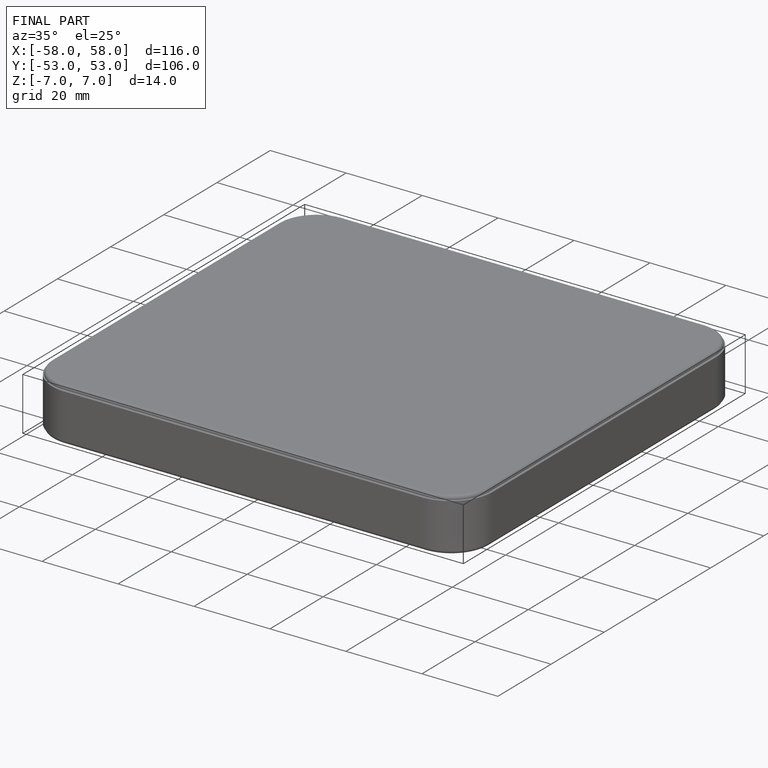
[diagram: finished part — iso view with bounding-box wireframe]
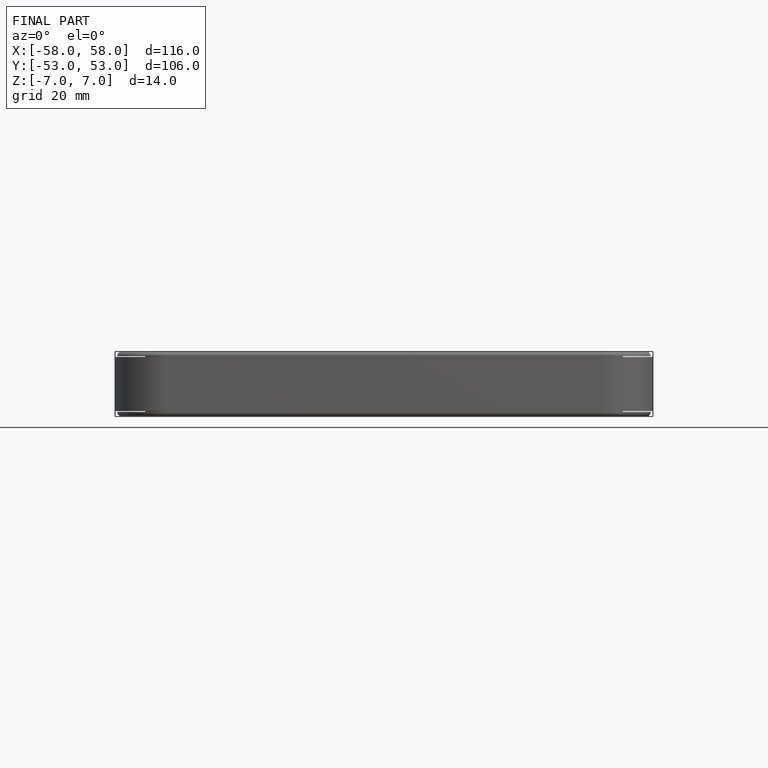
[diagram: finished part — front view with bounding-box wireframe]
